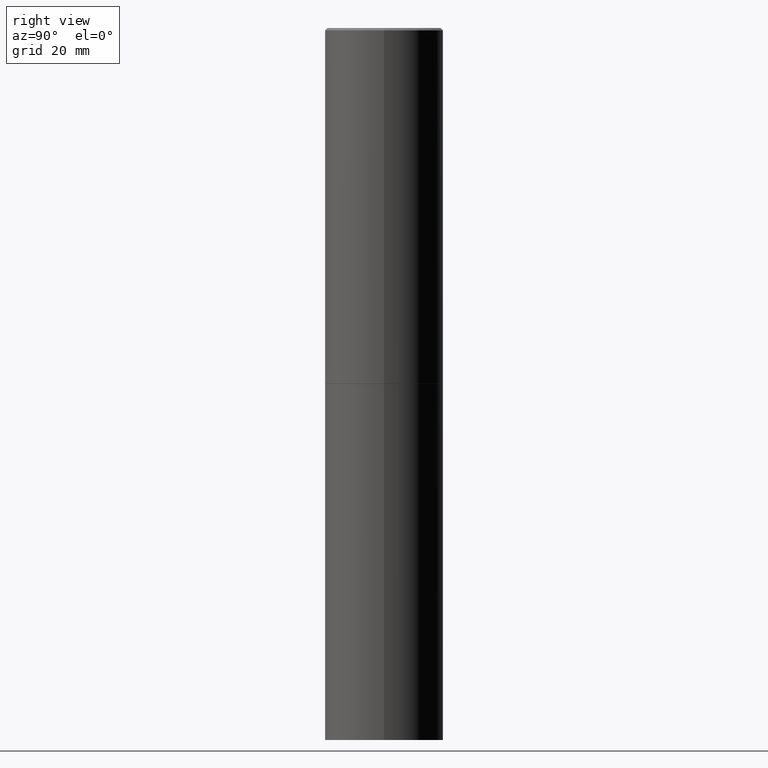
[diagram: clean part render]
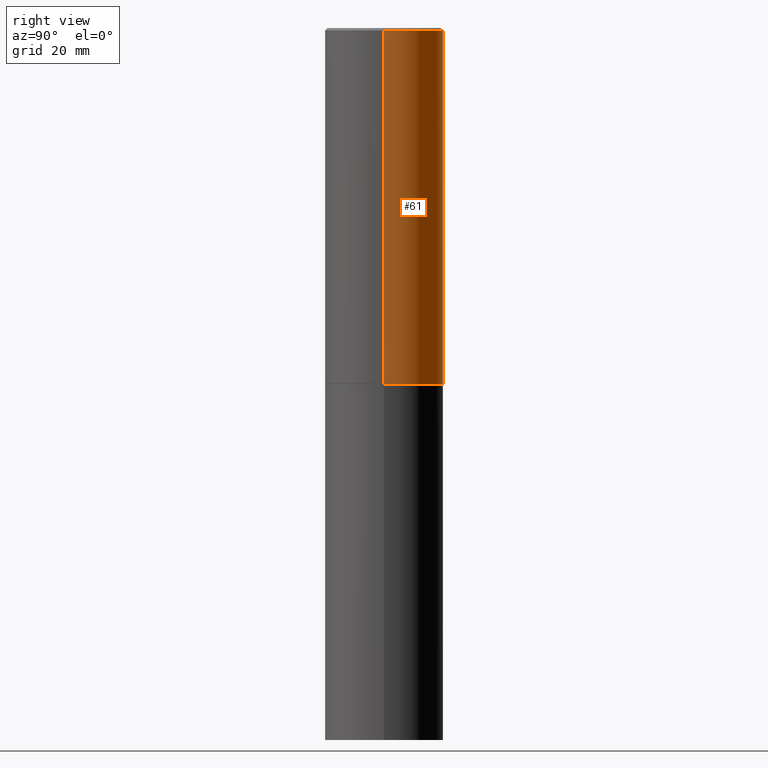
[diagram: same view with one face highlighted and labeled with its STEP entity id]
A machine part, right view. The second image highlights one B-rep face of the part: STEP entity #61.
In plain terms, the highlighted cylindrical surface (partial cylindrical patch) has radius 12.5006 mm, axis along (-0, 0, 1).
Its self-contained STEP definition (entity closure, byte-faithful):
#4 = AXIS2_PLACEMENT_3D ( 'NONE', #67, #230, #348 ) ;
#6 = VERTEX_POINT ( 'NONE', #60 ) ;
#17 = VECTOR ( 'NONE', #18, 39.37007874015748143 ) ;
#18 = DIRECTION ( 'NONE',  ( -2.445468806185136877E-29, 3.491481338843145188E-15, 1.000000000000000000 ) ) ;
#22 = ORIENTED_EDGE ( 'NONE', *, *, #351, .T. ) ;
#33 = CARTESIAN_POINT ( 'NONE',  ( -0.4921499999999999764, -1.690881473276754954E-15, -2.951700000000000212 ) ) ;
#34 = DIRECTION ( 'NONE',  ( -2.445468806185136597E-29, 3.491481338843145583E-15, 1.000000000000000000 ) ) ;
#38 = CARTESIAN_POINT ( 'NONE',  ( 0.000000000000000000, 0.000000000000000000, 0.000000000000000000 ) ) ;
#47 = EDGE_LOOP ( 'NONE', ( #343, #22, #366, #199 ) ) ;
#60 = CARTESIAN_POINT ( 'NONE',  ( -0.4921499999999996988, 3.366835455046430506E-15, -0.02000000000000010797 ) ) ;
#61 = ADVANCED_FACE ( 'NONE', ( #205 ), #338, .T. ) ;
#64 = DIRECTION ( 'NONE',  ( -2.445468806185136877E-29, 3.491481338843145188E-15, 1.000000000000000000 ) ) ;
#67 = CARTESIAN_POINT ( 'NONE',  ( 4.890937612370299433E-31, -6.982962677686328587E-17, -0.02000000000000010797 ) ) ;
#83 = LINE ( 'NONE', #326, #17 ) ;
#111 = VERTEX_POINT ( 'NONE', #33 ) ;
#124 = EDGE_CURVE ( 'NONE', #268, #298, #206, .T. ) ;
#125 = DIRECTION ( 'NONE',  ( 1.000000000000000000, -6.982962677686265922E-15, 0.000000000000000000 ) ) ;
#127 = CARTESIAN_POINT ( 'NONE',  ( 0.4921499999999996988, -3.446223716380120377E-15, -0.02000000000000010797 ) ) ;
#154 = CIRCLE ( 'NONE', #4, 0.4921499999999996988 ) ;
#155 = DIRECTION ( 'NONE',  ( -2.445468806185136597E-29, 3.491481338843145583E-15, 1.000000000000000000 ) ) ;
#181 = CARTESIAN_POINT ( 'NONE',  ( 7.218290275216666916E-29, -1.030580546786331359E-14, -2.951700000000000212 ) ) ;
#188 = CIRCLE ( 'NONE', #256, 0.4921499999999999764 ) ;
#197 = EDGE_CURVE ( 'NONE', #298, #6, #154, .T. ) ;
#199 = ORIENTED_EDGE ( 'NONE', *, *, #124, .F. ) ;
#205 = FACE_OUTER_BOUND ( 'NONE', #47, .T. ) ;
#206 = LINE ( 'NONE', #311, #280 ) ;
#209 = CARTESIAN_POINT ( 'NONE',  ( 0.4921499999999999764, -1.374247054968660936E-14, -2.951700000000000212 ) ) ;
#230 = DIRECTION ( 'NONE',  ( -2.445468806185136597E-29, 3.491481338843145583E-15, 1.000000000000000000 ) ) ;
#237 = EDGE_CURVE ( 'NONE', #268, #111, #188, .T. ) ;
#256 = AXIS2_PLACEMENT_3D ( 'NONE', #181, #155, #125 ) ;
#259 = DIRECTION ( 'NONE',  ( 1.000000000000000000, -6.982962677686265922E-15, 4.876176775795935793E-29 ) ) ;
#268 = VERTEX_POINT ( 'NONE', #209 ) ;
#280 = VECTOR ( 'NONE', #64, 39.37007874015748143 ) ;
#298 = VERTEX_POINT ( 'NONE', #127 ) ;
#307 = AXIS2_PLACEMENT_3D ( 'NONE', #38, #34, #259 ) ;
#311 = CARTESIAN_POINT ( 'NONE',  ( 0.4921499999999998098, -3.436665081823294593E-15, 2.399810400207968762E-29 ) ) ;
#326 = CARTESIAN_POINT ( 'NONE',  ( -0.4921499999999998098, 3.496936074043331714E-15, -2.420853904668950949E-29 ) ) ;
#338 = CYLINDRICAL_SURFACE ( 'NONE', #307, 0.4921499999999998098 ) ;
#343 = ORIENTED_EDGE ( 'NONE', *, *, #237, .T. ) ;
#348 = DIRECTION ( 'NONE',  ( 1.000000000000000000, -6.982962677686265922E-15, 0.000000000000000000 ) ) ;
#351 = EDGE_CURVE ( 'NONE', #111, #6, #83, .T. ) ;
#366 = ORIENTED_EDGE ( 'NONE', *, *, #197, .F. ) ;